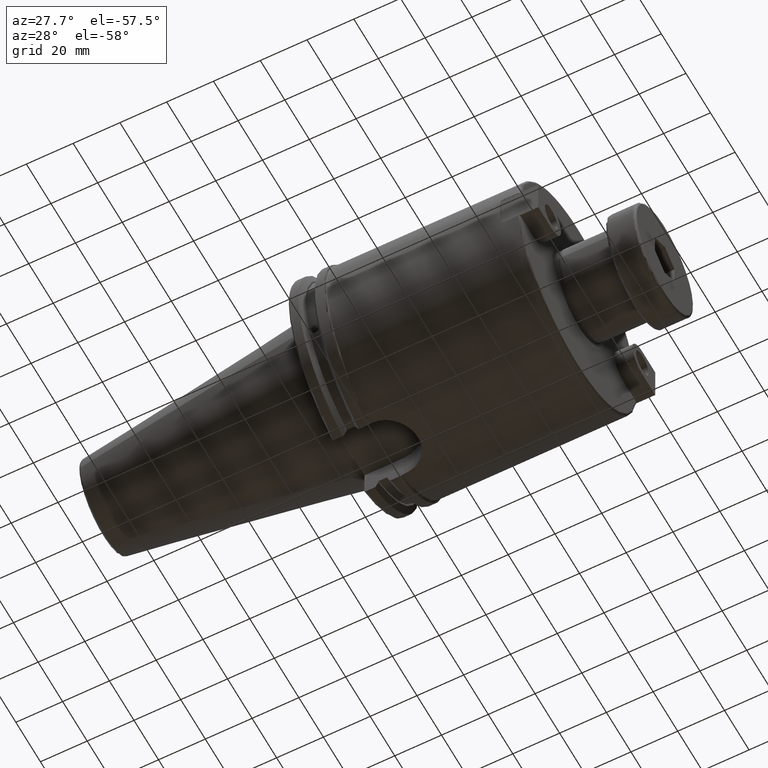
[diagram: clean part render]
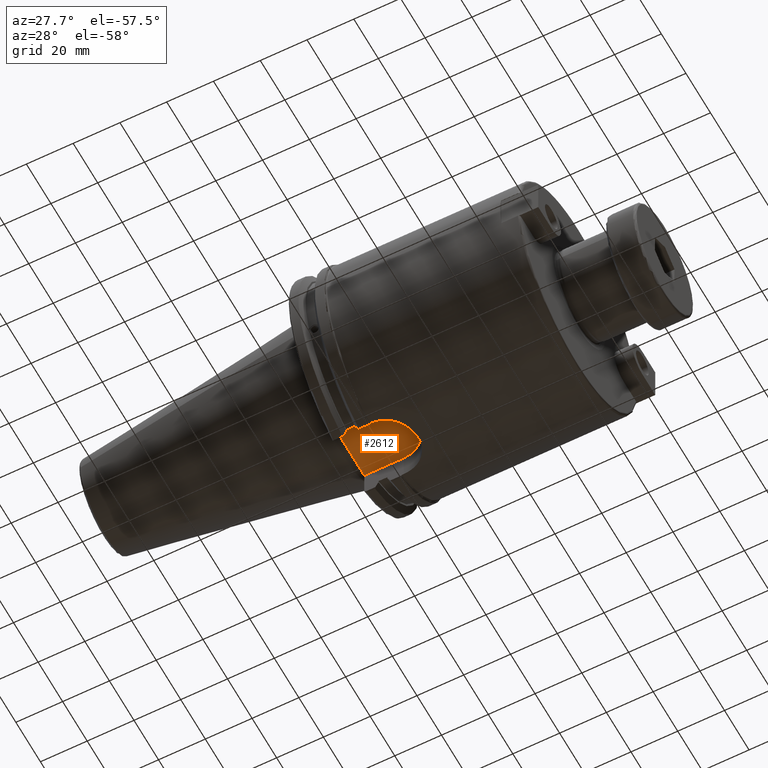
[diagram: same view with one face highlighted and labeled with its STEP entity id]
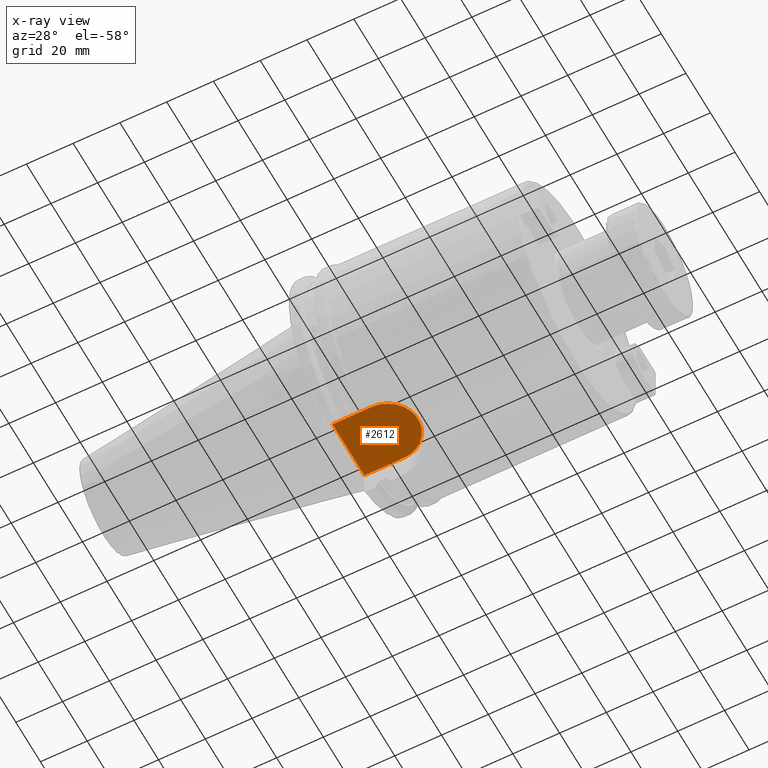
[diagram: x-ray of the same camera — body ghosted, the highlighted face saturated]
A machine part, auxiliary view. The second image highlights one B-rep face of the part: STEP entity #2612.
The next image is the same camera in x-ray: the body ghosted, the highlighted face saturated — about 0% of this face is hidden behind the body in this view.
In plain terms, the highlighted planar face has unit normal (0, 0, 1).
Its self-contained STEP definition (entity closure, byte-faithful):
#207=CIRCLE('',#2821,12.95);
#426=FACE_OUTER_BOUND('',#584,.T.);
#584=EDGE_LOOP('',(#2171,#2172,#2173,#2174));
#725=LINE('',#4807,#875);
#734=LINE('',#4906,#884);
#748=LINE('',#5030,#898);
#875=VECTOR('',#3499,10.);
#884=VECTOR('',#3528,10.);
#898=VECTOR('',#3590,10.);
#1062=VERTEX_POINT('',#4165);
#1063=VERTEX_POINT('',#4167);
#1161=VERTEX_POINT('',#4792);
#1168=VERTEX_POINT('',#4805);
#1363=EDGE_CURVE('',#1063,#1062,#207,.T.);
#1499=EDGE_CURVE('',#1168,#1161,#725,.T.);
#1522=EDGE_CURVE('',#1168,#1063,#734,.T.);
#1560=EDGE_CURVE('',#1062,#1161,#748,.T.);
#2171=ORIENTED_EDGE('',*,*,#1499,.F.);
#2172=ORIENTED_EDGE('',*,*,#1522,.T.);
#2173=ORIENTED_EDGE('',*,*,#1363,.T.);
#2174=ORIENTED_EDGE('',*,*,#1560,.T.);
#2499=PLANE('',#2955);
#2612=ADVANCED_FACE('',(#426),#2499,.F.);
#2821=AXIS2_PLACEMENT_3D('',#4168,#3254,#3255);
#2955=AXIS2_PLACEMENT_3D('',#5029,#3588,#3589);
#3254=DIRECTION('center_axis',(0.,0.,-1.));
#3255=DIRECTION('ref_axis',(3.4292603077225E-16,1.,0.));
#3499=DIRECTION('',(0.,-1.,0.));
#3528=DIRECTION('',(1.,-1.05265590482978E-15,0.));
#3588=DIRECTION('center_axis',(0.,0.,1.));
#3589=DIRECTION('ref_axis',(1.,0.,0.));
#3590=DIRECTION('',(-1.,2.63163976207444E-16,0.));
#4165=CARTESIAN_POINT('',(20.05,-12.95,-35.306));
#4167=CARTESIAN_POINT('',(20.05,12.95,-35.306));
#4168=CARTESIAN_POINT('Origin',(20.05,0.,-35.306));
#4792=CARTESIAN_POINT('',(3.175,-12.95,-35.306));
#4805=CARTESIAN_POINT('',(3.175,12.95,-35.306));
#4807=CARTESIAN_POINT('',(3.175,24.60625,-35.306));
#4906=CARTESIAN_POINT('',(3.175,12.95,-35.306));
#5029=CARTESIAN_POINT('Origin',(18.0875,-6.66133814775094E-15,-35.306));
#5030=CARTESIAN_POINT('',(20.05,-12.95,-35.306));